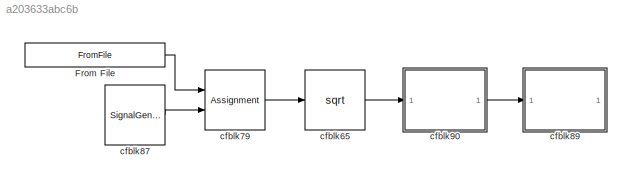
MODEL slx_a203633abc6b
KIND model
CONFIG AbsTol = auto
CONFIG EnableMultiTasking = off
CONFIG FixedStep = auto
CONFIG MaxStep = auto
CONFIG MinStep = auto
CONFIG RelTol = 1e-3
CONFIG SampleTimeConstraint = Unconstrained
CONFIG SolverName = VariableStepAuto
CONFIG StartTime = 0.0
CONFIG StopTime = 10.0
BLOCK [FromFile] From File
  FileName = <userpath>\Desktop\new.mat
  SampleTime = 0
BLOCK [Sqrt] cfblk65
BLOCK [Assignment] cfblk79
  DiagnosticForDimensions = Warning
  IndexOptions = Index vector (dialog)
  Indices = 1
  OutputSizes = 1
  Ports = [2, 1]
BLOCK [SignalGenerator] cfblk87
  Amplitude = [478990331.282242]
  Ports = [0, 1]
  Units = rad/sec
  WaveForm = square
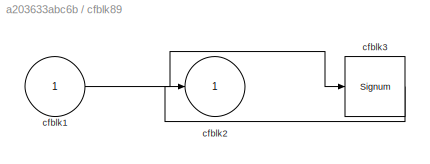
BLOCK [SubSystem] cfblk89
  Ports = [1, 1]
  RequestExecContextInheritance = off
BLOCK [Inport] cfblk89/cfblk1
BLOCK [Outport] cfblk89/cfblk2
BLOCK [Signum] cfblk89/cfblk3
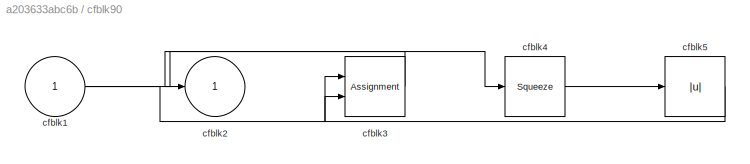
BLOCK [SubSystem] cfblk90
  Ports = [1, 1]
  RequestExecContextInheritance = off
BLOCK [Inport] cfblk90/cfblk1
BLOCK [Outport] cfblk90/cfblk2
BLOCK [Assignment] cfblk90/cfblk3
  DiagnosticForDimensions = Warning
  IndexOptions = Index vector (dialog)
  Indices = 1
  OutputSizes = 1
  Ports = [2, 1]
BLOCK [Squeeze] cfblk90/cfblk4
BLOCK [Abs] cfblk90/cfblk5
  SaturateOnIntegerOverflow = off
LINE From File:1 -> cfblk79:1
LINE cfblk65:1 -> cfblk90:1
LINE cfblk79:1 -> cfblk65:1
LINE cfblk87:1 -> cfblk79:2
LINE cfblk89/cfblk1:1 -> cfblk89/cfblk3:1
LINE cfblk89/cfblk3:1 -> cfblk89/cfblk2:1
NET cfblk90/cfblk1:1 -> cfblk90/cfblk3:2, cfblk90/cfblk4:1
LINE cfblk90/cfblk3:1 -> cfblk90/cfblk2:1
LINE cfblk90/cfblk4:1 -> cfblk90/cfblk5:1
LINE cfblk90/cfblk5:1 -> cfblk90/cfblk3:1
LINE cfblk90:1 -> cfblk89:1
note: NET lines group one-source signal fan-out (src -> all destinations, sorted); 1:1 wires keep LINE
